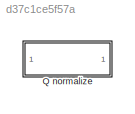
MODEL slx_d37c1ce5f57a
KIND library
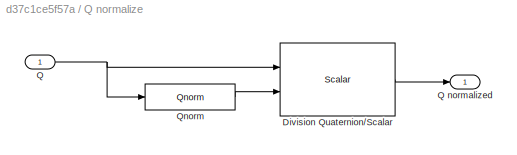
BLOCK [SubSystem] Q normalize
  Ports = [1, 1]
  RequestExecContextInheritance = off
BLOCK [Reference] Q normalize/Division Quaternion//Scalar  REF=DivisionQuatScalar/Division Quaternion//Scalar
  Ports = [2, 1]
  SourceBlock = DivisionQuatScalar/Division Quaternion//Scalar
  SourceType = SubSystem
BLOCK [Inport] Q normalize/Q
  IconDisplay = Port number
BLOCK [Outport] Q normalize/Q normalized
  IconDisplay = Port number
BLOCK [Reference] Q normalize/Qnorm  REF=Qnorm/Qnorm
  Ports = [1, 1]
  SourceBlock = Qnorm/Qnorm
  SourceType = SubSystem
LINE Q normalize/Division Quaternion//Scalar:1 -> Q normalize/Q normalized:1
NET Q normalize/Q:1 -> Q normalize/Division Quaternion//Scalar:1, Q normalize/Qnorm:1
LINE Q normalize/Qnorm:1 -> Q normalize/Division Quaternion//Scalar:2
note: NET lines group one-source signal fan-out (src -> all destinations, sorted); 1:1 wires keep LINE
